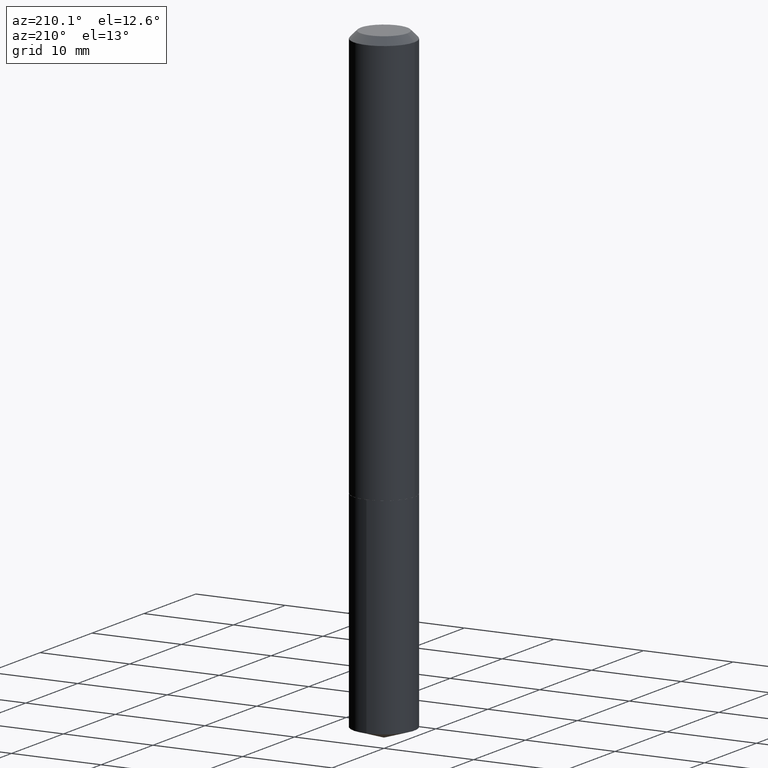
[diagram: clean part render]
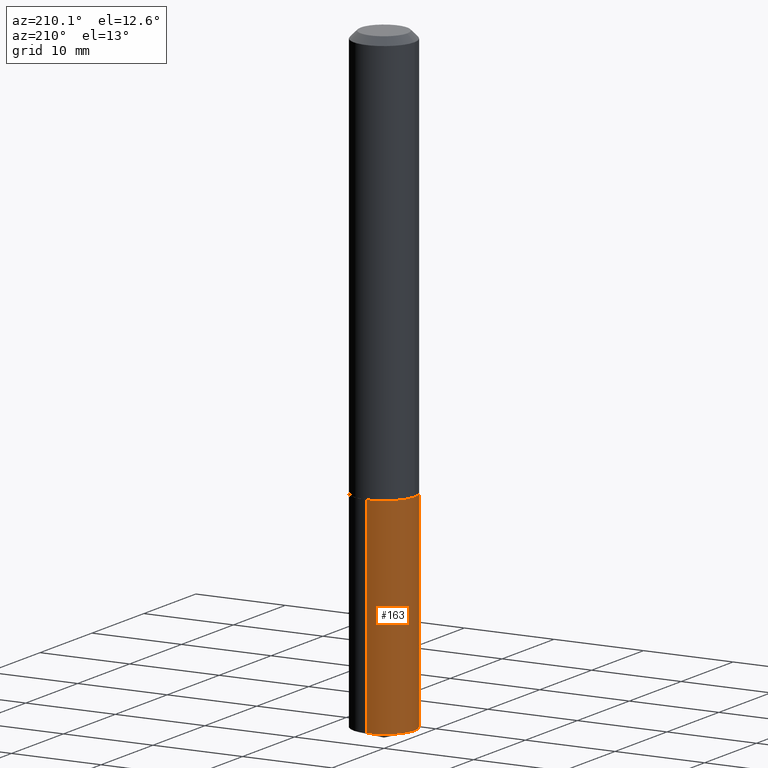
[diagram: same view with one face highlighted and labeled with its STEP entity id]
A machine part, auxiliary view. The second image highlights one B-rep face of the part: STEP entity #163.
In plain terms, the highlighted cylindrical surface (edge-blend (fillet) strip) has radius 3.3998 mm, axis along (-0, 0, 1).
Its self-contained STEP definition (entity closure, byte-faithful):
#23 = FACE_OUTER_BOUND ( 'NONE', #228, .T. ) ;
#31 = CARTESIAN_POINT ( 'NONE',  ( 4.409424804432420683E-29, -6.295490002068076239E-15, -1.803100000000000147 ) ) ;
#54 = CARTESIAN_POINT ( 'NONE',  ( -9.346695544082625583E-16, -0.1338500000000062973, -1.803099999999999703 ) ) ;
#60 = ORIENTED_EDGE ( 'NONE', *, *, #302, .F. ) ;
#69 = ORIENTED_EDGE ( 'NONE', *, *, #342, .F. ) ;
#77 = DIRECTION ( 'NONE',  ( -2.446102130504644901E-29, 3.490574382371028182E-15, 1.000000000000000000 ) ) ;
#82 = CARTESIAN_POINT ( 'NONE',  ( 9.510614518149603401E-16, 0.1338499999999936685, -1.803100000000000813 ) ) ;
#87 = AXIS2_PLACEMENT_3D ( 'NONE', #31, #144, #150 ) ;
#108 = EDGE_CURVE ( 'NONE', #259, #124, #205, .T. ) ;
#109 = LINE ( 'NONE', #357, #136 ) ;
#110 = VERTEX_POINT ( 'NONE', #82 ) ;
#117 = CARTESIAN_POINT ( 'NONE',  ( 6.636838695077328277E-29, -9.473997460388503922E-15, -2.713697257108548921 ) ) ;
#124 = VERTEX_POINT ( 'NONE', #54 ) ;
#135 = VECTOR ( 'NONE', #305, 39.37007874015748143 ) ;
#136 = VECTOR ( 'NONE', #308, 39.37007874015748143 ) ;
#144 = DIRECTION ( 'NONE',  ( -2.446102130504644901E-29, 3.490574382371028182E-15, 1.000000000000000000 ) ) ;
#150 = DIRECTION ( 'NONE',  ( -6.982962677686265133E-15, -1.000000000000000000, 4.081954417130015942E-15 ) ) ;
#163 = ADVANCED_FACE ( 'NONE', ( #23 ), #214, .T. ) ;
#169 = VERTEX_POINT ( 'NONE', #240 ) ;
#177 = DIRECTION ( 'NONE',  ( -2.446102130504644901E-29, 3.490574382371028182E-15, 1.000000000000000000 ) ) ;
#179 = CARTESIAN_POINT ( 'NONE',  ( -9.346695544082625583E-16, -0.1338500000000062973, -1.803099999999999703 ) ) ;
#182 = CIRCLE ( 'NONE', #87, 0.1338499999999999968 ) ;
#186 = CARTESIAN_POINT ( 'NONE',  ( -9.346695544082404702E-16, -0.1338500000000095169, -2.713697257108548477 ) ) ;
#204 = DIRECTION ( 'NONE',  ( -6.982962677686265133E-15, -1.000000000000000000, 4.081954417130015942E-15 ) ) ;
#205 = LINE ( 'NONE', #179, #135 ) ;
#214 = CYLINDRICAL_SURFACE ( 'NONE', #348, 0.1338499999999999968 ) ;
#228 = EDGE_LOOP ( 'NONE', ( #69, #331, #245, #60 ) ) ;
#240 = CARTESIAN_POINT ( 'NONE',  ( 9.510614518149607345E-16, 0.1338499999999905321, -2.713697257108549810 ) ) ;
#245 = ORIENTED_EDGE ( 'NONE', *, *, #108, .T. ) ;
#259 = VERTEX_POINT ( 'NONE', #186 ) ;
#302 = EDGE_CURVE ( 'NONE', #110, #124, #182, .T. ) ;
#303 = DIRECTION ( 'NONE',  ( -6.982962677686265133E-15, -1.000000000000000000, 4.081954417130015942E-15 ) ) ;
#305 = DIRECTION ( 'NONE',  ( -2.446102130504645182E-29, 3.490574382371027788E-15, 1.000000000000000000 ) ) ;
#308 = DIRECTION ( 'NONE',  ( -2.446102130504645182E-29, 3.490574382371027788E-15, 1.000000000000000000 ) ) ;
#329 = EDGE_CURVE ( 'NONE', #169, #259, #381, .T. ) ;
#330 = CARTESIAN_POINT ( 'NONE',  ( 4.409424804432420683E-29, -6.295490002068076239E-15, -1.803100000000000147 ) ) ;
#331 = ORIENTED_EDGE ( 'NONE', *, *, #329, .T. ) ;
#334 = AXIS2_PLACEMENT_3D ( 'NONE', #117, #177, #303 ) ;
#342 = EDGE_CURVE ( 'NONE', #169, #110, #109, .T. ) ;
#348 = AXIS2_PLACEMENT_3D ( 'NONE', #330, #77, #204 ) ;
#357 = CARTESIAN_POINT ( 'NONE',  ( 9.510614518149380547E-16, 0.1338499999999936962, -1.803100000000000813 ) ) ;
#381 = CIRCLE ( 'NONE', #334, 0.1338499999999999968 ) ;